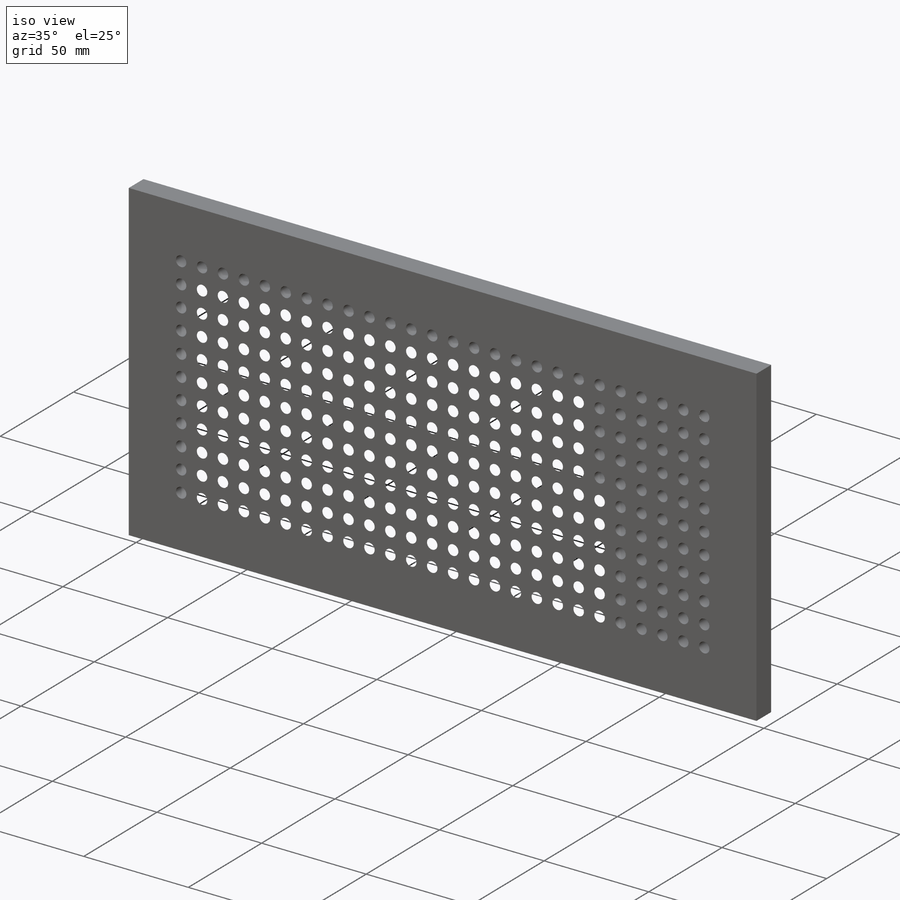
[diagram: iso view]
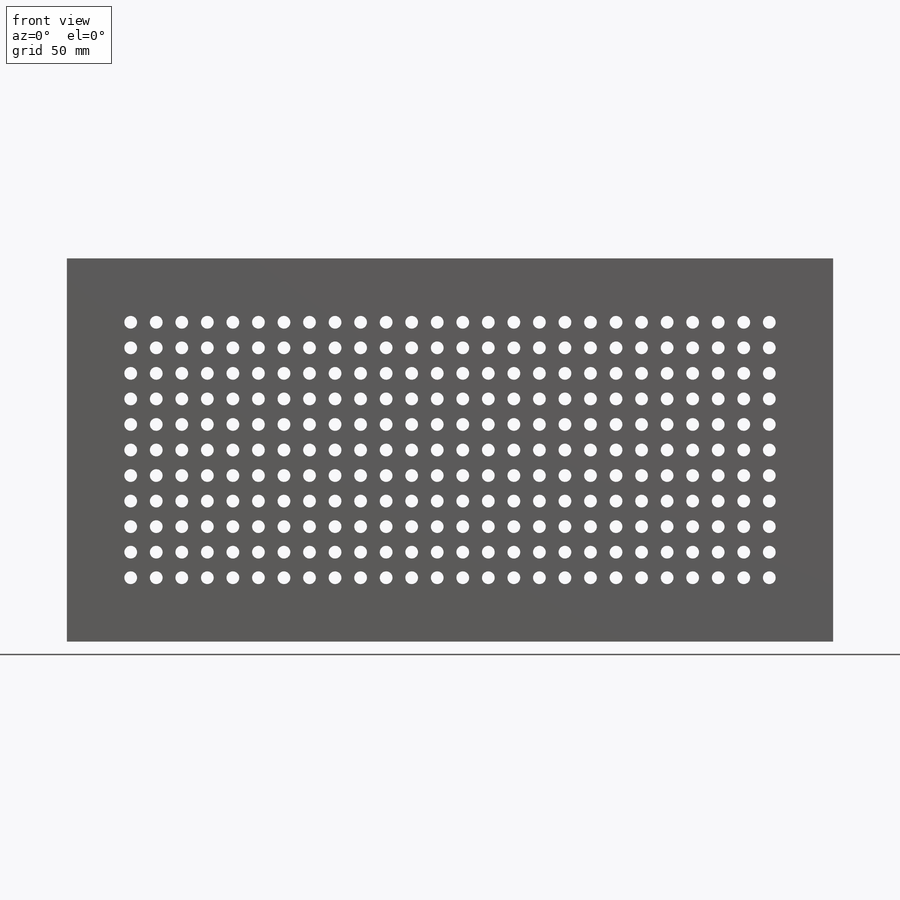
[diagram: front view]
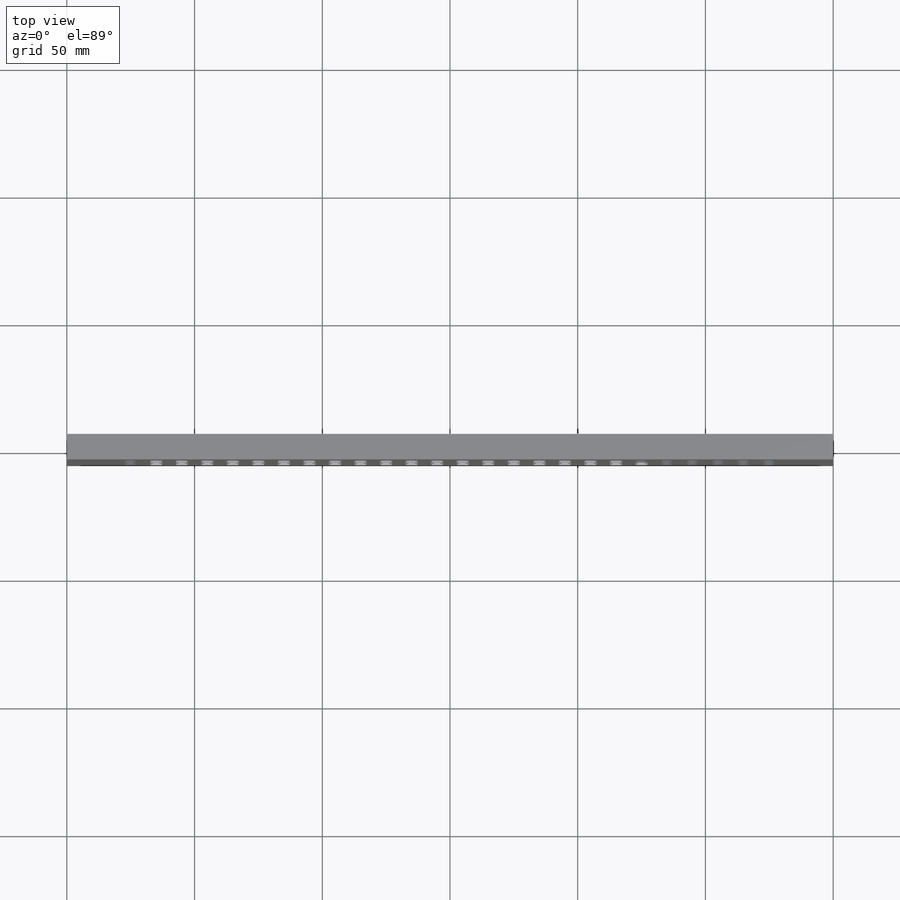
[diagram: top view]
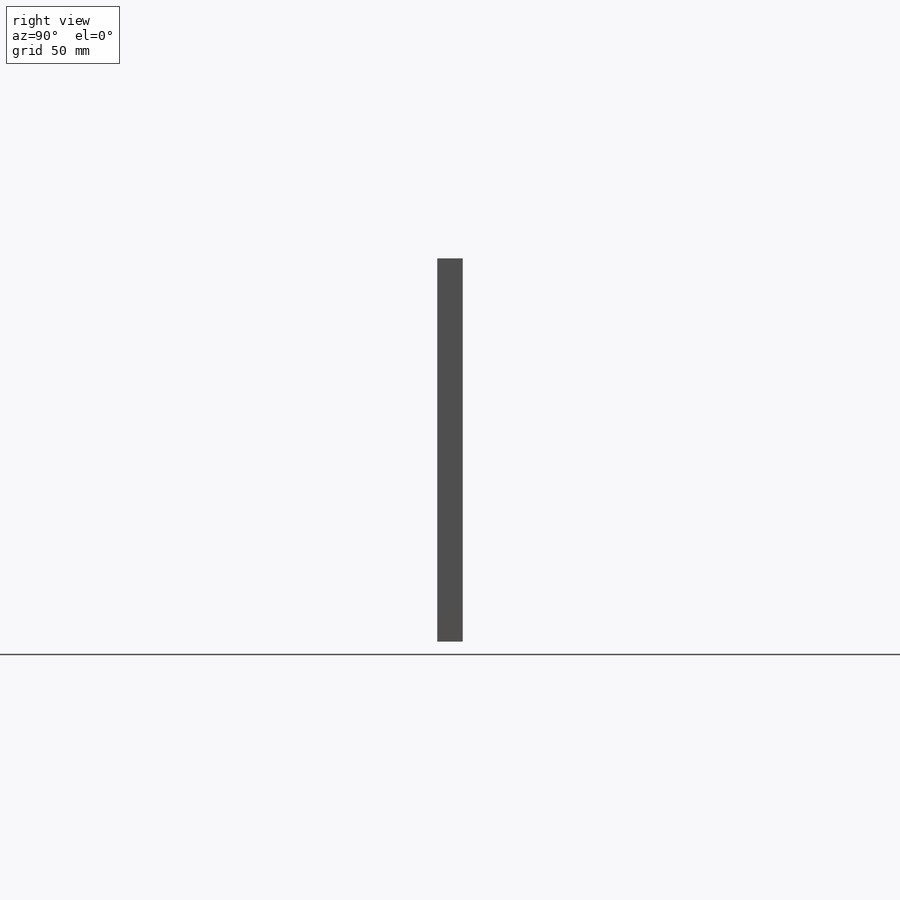
[diagram: right view]
SOLIDWORKS PART (.sldprt)
format: sldprt  version: not decoded by parser v0  size: 1,650,688 bytes
history: native  units: mm
features: plane x3, sketch x3, pattern_linear x2, material x1, extrude x1, hole x1 + 3 further entries (+9 scaffold rows collapsed)
feature tree (23):
  scaffold x9  (default folders/planes/origin — collapsed)
  material  "S235JR"
  plane  "Vorderansicht"
  plane  "Draufsicht"
  plane  "Seitenansicht"
  "Tabelle"
  "Y-Achse"
  "Z-Achse"
  sketch  "Skizze1"  dims[D1=300.0mm D2=150.0mm]
  extrude  "Aufsatz-Linear austragen1"  Depth=10mm
  hole  "Ø5.0 (5) Durchmesser Bohrung1"  Diameter=5mm Depth=10mm
  sketch  "Skizze3"  dims[D1=25.0mm D2=25.0mm]
  sketch  "Skizze2"  dims[hole-wizard template sketch: 59 standard entries collapsed; hole parameters kept: c18.Bohrerdurchmesser=5.0mm c18.Bohrungstiefe=10.0mm]
  pattern_linear  "Lineares Muster1"  Count1=26 Count2=1 Spacing1=10mm Spacing2=10mm
  pattern_linear  "Lineares Muster2"  Count1=11 Count2=1 Spacing1=10mm Spacing2=10mm
decode coverage: 7 of 7 modeling features carry decoded parameters; 3 rows unclassified (native names shown)
note: ~ marks probable driven/reference dimensions
note: suppression state not decoded; provenance and decode notes live in map.json
